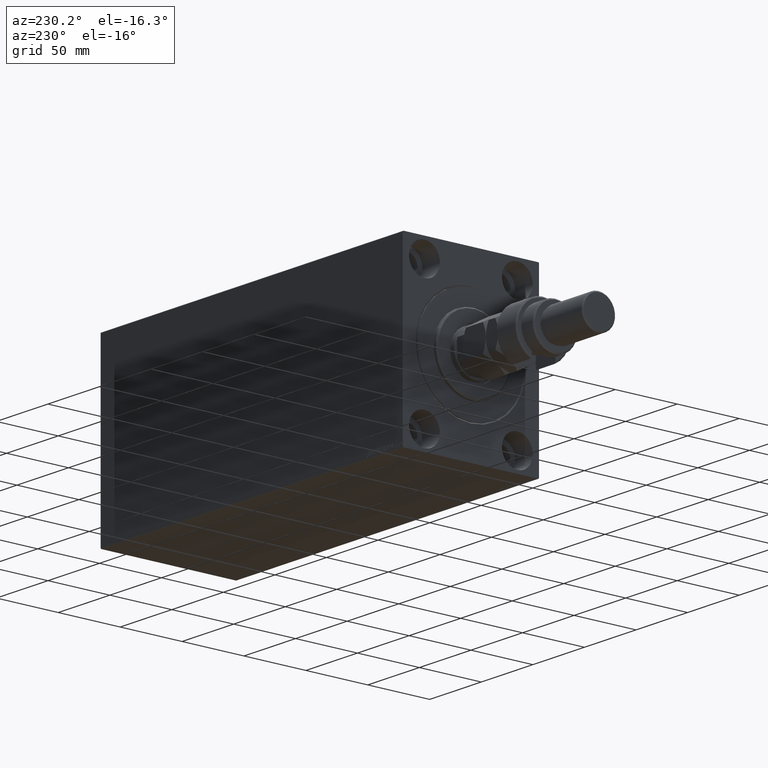
[diagram: clean part render]
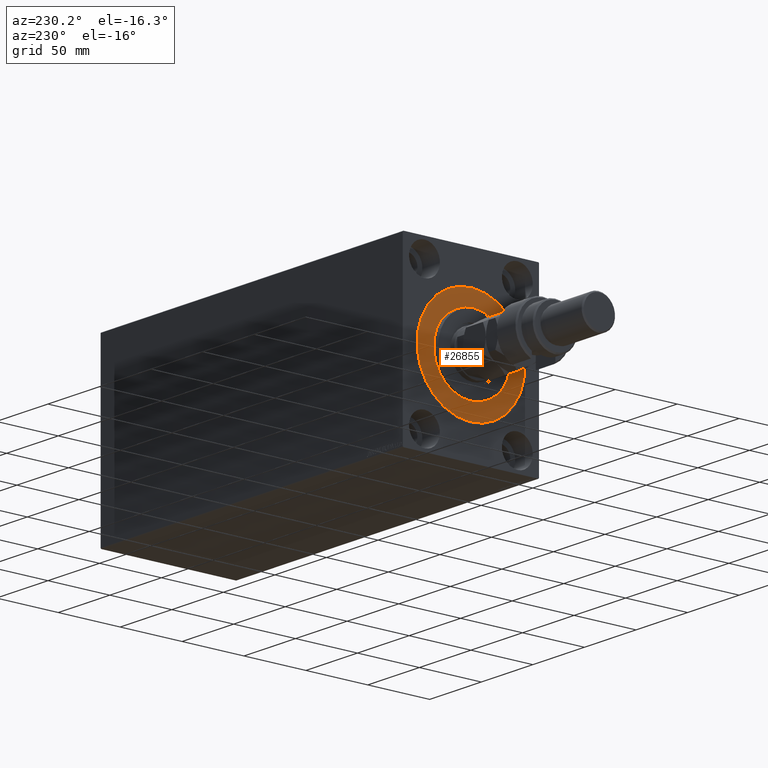
[diagram: same view with one face highlighted and labeled with its STEP entity id]
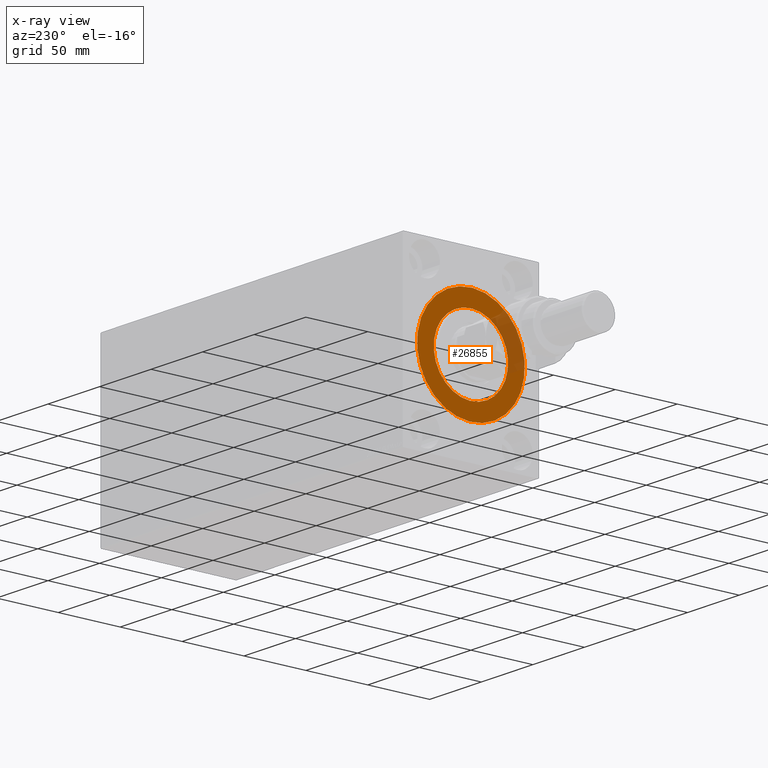
[diagram: x-ray of the same camera — body ghosted, the highlighted face saturated]
A machine part, auxiliary view. The second image highlights one B-rep face of the part: STEP entity #26855.
The next image is the same camera in x-ray: the body ghosted, the highlighted face saturated — about 17% of this face is hidden behind the body in this view.
In plain terms, the highlighted planar face has unit normal (1, 0, -0).
Its self-contained STEP definition (entity closure, byte-faithful):
#139 = EDGE_CURVE ( 'NONE', #31028, #36425, #34086, .T. ) ;
#1513 = CARTESIAN_POINT ( 'NONE',  ( 0.000000000000000000, 0.000000000000000000, 30.00000000000000000 ) ) ;
#1673 = AXIS2_PLACEMENT_3D ( 'NONE', #41819, #9478, #38294 ) ;
#3283 = AXIS2_PLACEMENT_3D ( 'NONE', #6818, #7519, #39870 ) ;
#3331 = AXIS2_PLACEMENT_3D ( 'NONE', #43388, #39846, #25207 ) ;
#3591 = AXIS2_PLACEMENT_3D ( 'NONE', #46363, #39044, #10232 ) ;
#3921 = EDGE_CURVE ( 'NONE', #27542, #23232, #19861, .T. ) ;
#4374 = FACE_BOUND ( 'NONE', #17051, .T. ) ;
#6818 = CARTESIAN_POINT ( 'NONE',  ( 0.000000000000000000, 0.000000000000000000, 0.000000000000000000 ) ) ;
#7519 = DIRECTION ( 'NONE',  ( -1.000000000000000000, 0.000000000000000000, 0.000000000000000000 ) ) ;
#9478 = DIRECTION ( 'NONE',  ( 1.000000000000000000, -0.000000000000000000, 0.000000000000000000 ) ) ;
#10232 = DIRECTION ( 'NONE',  ( 0.000000000000000000, 0.000000000000000000, -1.000000000000000000 ) ) ;
#11773 = ORIENTED_EDGE ( 'NONE', *, *, #139, .F. ) ;
#15238 = PLANE ( 'NONE',  #30814 ) ;
#17051 = EDGE_LOOP ( 'NONE', ( #11773, #32263 ) ) ;
#17875 = EDGE_LOOP ( 'NONE', ( #23453, #21990 ) ) ;
#18300 = DIRECTION ( 'NONE',  ( -1.000000000000000000, 0.000000000000000000, 0.000000000000000000 ) ) ;
#18634 = EDGE_CURVE ( 'NONE', #36425, #31028, #44298, .T. ) ;
#18960 = CARTESIAN_POINT ( 'NONE',  ( 0.000000000000000000, 3.673940397442059178E-15, -30.00000000000000000 ) ) ;
#19861 = CIRCLE ( 'NONE', #3283, 43.50000000000000000 ) ;
#21990 = ORIENTED_EDGE ( 'NONE', *, *, #3921, .F. ) ;
#22166 = CIRCLE ( 'NONE', #3331, 43.50000000000000000 ) ;
#22310 = CARTESIAN_POINT ( 'NONE',  ( 0.000000000000000000, 0.000000000000000000, 0.000000000000000000 ) ) ;
#23232 = VERTEX_POINT ( 'NONE', #41203 ) ;
#23453 = ORIENTED_EDGE ( 'NONE', *, *, #39903, .F. ) ;
#25207 = DIRECTION ( 'NONE',  ( 0.000000000000000000, 0.000000000000000000, 1.000000000000000000 ) ) ;
#25840 = FACE_OUTER_BOUND ( 'NONE', #17875, .T. ) ;
#26855 = ADVANCED_FACE ( 'NONE', ( #4374, #25840 ), #15238, .F. ) ;
#27542 = VERTEX_POINT ( 'NONE', #45013 ) ;
#30814 = AXIS2_PLACEMENT_3D ( 'NONE', #22310, #18300, #32943 ) ;
#31028 = VERTEX_POINT ( 'NONE', #1513 ) ;
#32263 = ORIENTED_EDGE ( 'NONE', *, *, #18634, .F. ) ;
#32943 = DIRECTION ( 'NONE',  ( 0.000000000000000000, 0.000000000000000000, 1.000000000000000000 ) ) ;
#34086 = CIRCLE ( 'NONE', #1673, 30.00000000000000000 ) ;
#36425 = VERTEX_POINT ( 'NONE', #18960 ) ;
#38294 = DIRECTION ( 'NONE',  ( 0.000000000000000000, 0.000000000000000000, -1.000000000000000000 ) ) ;
#39044 = DIRECTION ( 'NONE',  ( 1.000000000000000000, -0.000000000000000000, 0.000000000000000000 ) ) ;
#39846 = DIRECTION ( 'NONE',  ( -1.000000000000000000, 0.000000000000000000, 0.000000000000000000 ) ) ;
#39870 = DIRECTION ( 'NONE',  ( 0.000000000000000000, 0.000000000000000000, 1.000000000000000000 ) ) ;
#39903 = EDGE_CURVE ( 'NONE', #23232, #27542, #22166, .T. ) ;
#41203 = CARTESIAN_POINT ( 'NONE',  ( 0.000000000000000000, 0.000000000000000000, -43.50000000000000000 ) ) ;
#41819 = CARTESIAN_POINT ( 'NONE',  ( 0.000000000000000000, 0.000000000000000000, 0.000000000000000000 ) ) ;
#43388 = CARTESIAN_POINT ( 'NONE',  ( 0.000000000000000000, 0.000000000000000000, 0.000000000000000000 ) ) ;
#44298 = CIRCLE ( 'NONE', #3591, 30.00000000000000000 ) ;
#45013 = CARTESIAN_POINT ( 'NONE',  ( 0.000000000000000000, 5.327213576290986044E-15, 43.50000000000000000 ) ) ;
#46363 = CARTESIAN_POINT ( 'NONE',  ( 0.000000000000000000, 0.000000000000000000, 0.000000000000000000 ) ) ;